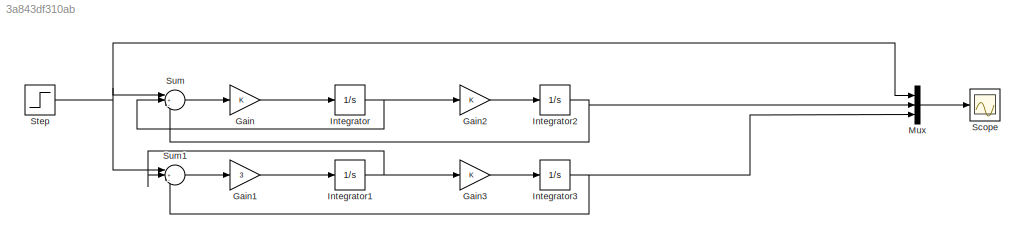
MODEL slx_3a843df310ab
KIND model
CONFIG AbsTol = auto
CONFIG EnableMultiTasking = off
CONFIG FixedStep = auto
CONFIG MaxStep = auto
CONFIG MinStep = auto
CONFIG RelTol = 1e-3
CONFIG SampleTimeConstraint = Unconstrained
CONFIG SolverName = VariableStepAuto
CONFIG StartTime = 0.0
CONFIG StopTime = 10.0
BLOCK [Gain] Gain
BLOCK [Gain] Gain1
  Gain = 3
BLOCK [Gain] Gain2
BLOCK [Gain] Gain3
BLOCK [Integrator] Integrator
BLOCK [Integrator] Integrator1
BLOCK [Integrator] Integrator2
BLOCK [Integrator] Integrator3
BLOCK [Mux] Mux
  DisplayOption = bar
  Inputs = 3
BLOCK [Scope] Scope
  Floating = off
  NumInputPorts = 1
  ScopeSpecificationString = Simulink.scopes.TimeScopeBlockCfg('CurrentConfiguration', extmgr.ConfigurationSet(extmgr.Configuration('Core','General UI',true),extmgr.Configuration('Core','Source UI',true),extmgr.Configuration('Sources','WiredSimulink',true),extmgr.Configuration('Visuals','Time Domain',true,'SerializedDisplays',{struct('MinYLimReal','-0.14537','MaxYLimReal','1.30834','YLabelReal','','MinYLimMag','0.00000','MaxY...<+1441ch>
BLOCK [Step] Step
  SampleTime = 0
BLOCK [Sum] Sum
  Inputs = |+--
BLOCK [Sum] Sum1
  Inputs = |+--
LINE Gain1:1 -> Integrator1:1
LINE Gain2:1 -> Integrator2:1
LINE Gain3:1 -> Integrator3:1
LINE Gain:1 -> Integrator:1
NET Integrator1:1 -> Gain3:1, Sum1:2
NET Integrator2:1 -> Mux:2, Sum:3
NET Integrator3:1 -> Mux:3, Sum1:3
NET Integrator:1 -> Gain2:1, Sum:2
LINE Mux:1 -> Scope:1
NET Step:1 -> Mux:1, Sum1:1, Sum:1
LINE Sum1:1 -> Gain1:1
LINE Sum:1 -> Gain:1
note: NET lines group one-source signal fan-out (src -> all destinations, sorted); 1:1 wires keep LINE
